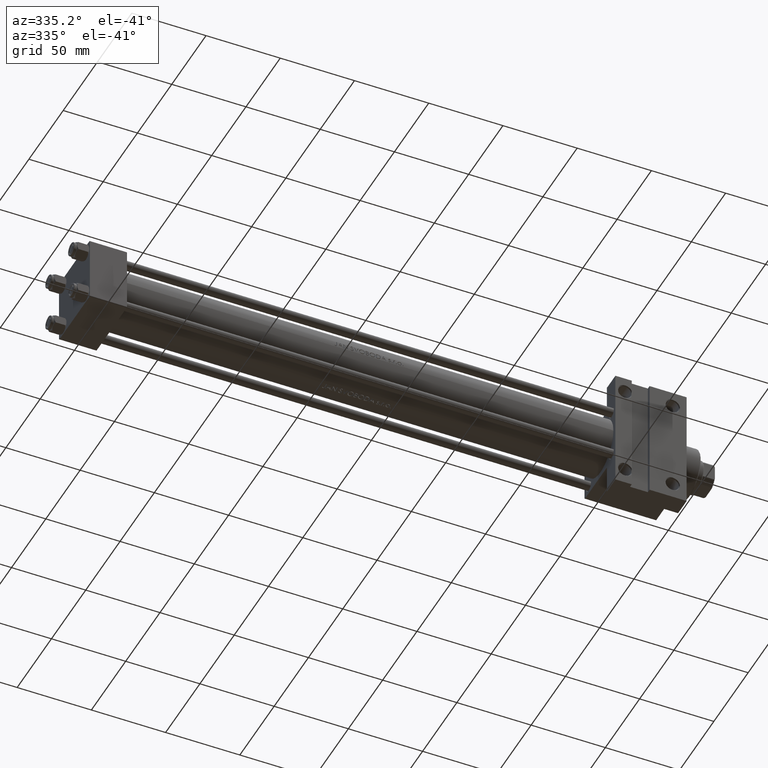
[diagram: clean part render]
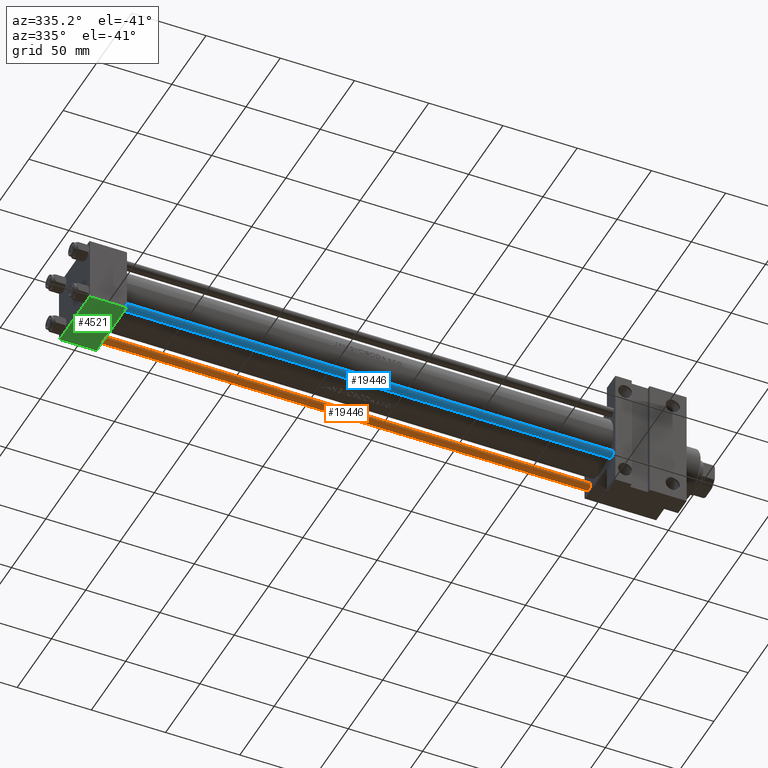
[diagram: same view with three faces highlighted in distinct colors, each labeled with its STEP entity id]
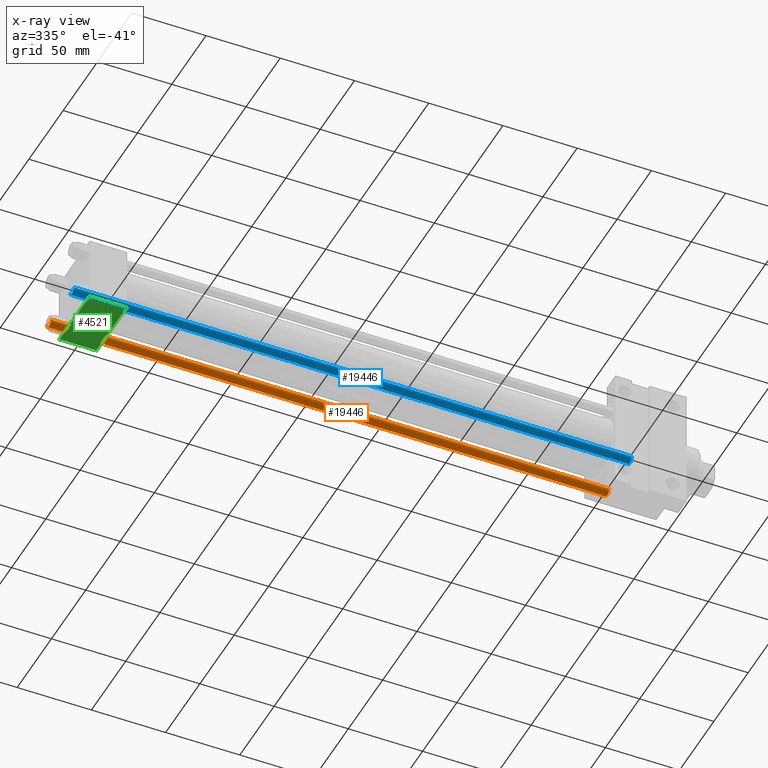
[diagram: x-ray of the same camera — body ghosted, the three highlighted faces saturated]
A machine part, auxiliary view with three faces highlighted in distinct colors.
The next image is the same camera in x-ray (body ghosted, the three faces saturated) — at least one of them is partly hidden behind the body in this view.
Their STEP definitions:

[orange] entity #19446 — the highlighted cylindrical surface (edge-blend (fillet) strip) has radius 3 mm, axis along (-1, -0, 0).
#1725 = EDGE_CURVE ( 'NONE', #26006, #30856, #18553, .T. ) ;
#3904 = VECTOR ( 'NONE', #25449, 1000.000000000000000 ) ;
#5387 = DIRECTION ( 'NONE',  ( 1.000000000000000000, 0.000000000000000000, 0.000000000000000000 ) ) ;
#5630 = CARTESIAN_POINT ( 'NONE',  ( 0.000000000000000000, 0.000000000000000000, 0.5000000000000559552 ) ) ;
#5668 = AXIS2_PLACEMENT_3D ( 'NONE', #41753, #20545, #20774 ) ;
#9049 = CARTESIAN_POINT ( 'NONE',  ( 0.000000000000000000, 0.000000000000000000, 376.5000000000000568 ) ) ;
#9944 = CARTESIAN_POINT ( 'NONE',  ( -3.000000000000000444, 0.000000000000000000, 376.5000000000000568 ) ) ;
#10063 = AXIS2_PLACEMENT_3D ( 'NONE', #9049, #21119, #31263 ) ;
#10309 = CIRCLE ( 'NONE', #15692, 3.000000000000000444 ) ;
#11223 = EDGE_CURVE ( 'NONE', #36120, #34086, #10309, .T. ) ;
#11439 = EDGE_LOOP ( 'NONE', ( #17567, #15328, #47484, #40861 ) ) ;
#11940 = CARTESIAN_POINT ( 'NONE',  ( 3.000000000000000444, 3.673940397442060361E-16, 0.5000000000000559552 ) ) ;
#12327 = FACE_OUTER_BOUND ( 'NONE', #11439, .T. ) ;
#15056 = CARTESIAN_POINT ( 'NONE',  ( 3.000000000000000444, 3.673940397442060361E-16, 376.5000000000000568 ) ) ;
#15328 = ORIENTED_EDGE ( 'NONE', *, *, #1725, .T. ) ;
#15692 = AXIS2_PLACEMENT_3D ( 'NONE', #5630, #38431, #5387 ) ;
#17366 = DIRECTION ( 'NONE',  ( -0.000000000000000000, -0.000000000000000000, -1.000000000000000000 ) ) ;
#17567 = ORIENTED_EDGE ( 'NONE', *, *, #47424, .F. ) ;
#18553 = CIRCLE ( 'NONE', #10063, 3.000000000000000444 ) ;
#19446 = ADVANCED_FACE ( 'NONE', ( #12327 ), #27050, .T. ) ;
#20545 = DIRECTION ( 'NONE',  ( -0.000000000000000000, -0.000000000000000000, -1.000000000000000000 ) ) ;
#20774 = DIRECTION ( 'NONE',  ( -1.000000000000000000, 0.000000000000000000, 0.000000000000000000 ) ) ;
#21119 = DIRECTION ( 'NONE',  ( 0.000000000000000000, 0.000000000000000000, -1.000000000000000000 ) ) ;
#21835 = LINE ( 'NONE', #35181, #3904 ) ;
#25449 = DIRECTION ( 'NONE',  ( -0.000000000000000000, -0.000000000000000000, -1.000000000000000000 ) ) ;
#26006 = VERTEX_POINT ( 'NONE', #15056 ) ;
#27050 = CYLINDRICAL_SURFACE ( 'NONE', #5668, 3.000000000000000444 ) ;
#28456 = LINE ( 'NONE', #35928, #36326 ) ;
#30856 = VERTEX_POINT ( 'NONE', #9944 ) ;
#31263 = DIRECTION ( 'NONE',  ( 1.000000000000000000, 0.000000000000000000, 0.000000000000000000 ) ) ;
#34086 = VERTEX_POINT ( 'NONE', #11940 ) ;
#35181 = CARTESIAN_POINT ( 'NONE',  ( -3.000000000000000444, 0.000000000000000000, 377.0000000000000000 ) ) ;
#35928 = CARTESIAN_POINT ( 'NONE',  ( 3.000000000000000444, 3.673940397442060361E-16, 377.0000000000000000 ) ) ;
#36120 = VERTEX_POINT ( 'NONE', #38778 ) ;
#36326 = VECTOR ( 'NONE', #17366, 1000.000000000000000 ) ;
#37338 = EDGE_CURVE ( 'NONE', #30856, #36120, #21835, .T. ) ;
#38431 = DIRECTION ( 'NONE',  ( -0.000000000000000000, -0.000000000000000000, 1.000000000000000000 ) ) ;
#38778 = CARTESIAN_POINT ( 'NONE',  ( -3.000000000000000444, 0.000000000000000000, 0.5000000000000559552 ) ) ;
#40861 = ORIENTED_EDGE ( 'NONE', *, *, #11223, .T. ) ;
#41753 = CARTESIAN_POINT ( 'NONE',  ( 0.000000000000000000, 0.000000000000000000, 377.0000000000000000 ) ) ;
#47424 = EDGE_CURVE ( 'NONE', #26006, #34086, #28456, .T. ) ;
#47484 = ORIENTED_EDGE ( 'NONE', *, *, #37338, .T. ) ;

[blue] entity #19446 — the highlighted cylindrical surface (edge-blend (fillet) strip) has radius 3 mm, axis along (1, 0, 0).
#1725 = EDGE_CURVE ( 'NONE', #26006, #30856, #18553, .T. ) ;
#3904 = VECTOR ( 'NONE', #25449, 1000.000000000000000 ) ;
#5387 = DIRECTION ( 'NONE',  ( 1.000000000000000000, 0.000000000000000000, 0.000000000000000000 ) ) ;
#5630 = CARTESIAN_POINT ( 'NONE',  ( 0.000000000000000000, 0.000000000000000000, 0.5000000000000559552 ) ) ;
#5668 = AXIS2_PLACEMENT_3D ( 'NONE', #41753, #20545, #20774 ) ;
#9049 = CARTESIAN_POINT ( 'NONE',  ( 0.000000000000000000, 0.000000000000000000, 376.5000000000000568 ) ) ;
#9944 = CARTESIAN_POINT ( 'NONE',  ( -3.000000000000000444, 0.000000000000000000, 376.5000000000000568 ) ) ;
#10063 = AXIS2_PLACEMENT_3D ( 'NONE', #9049, #21119, #31263 ) ;
#10309 = CIRCLE ( 'NONE', #15692, 3.000000000000000444 ) ;
#11223 = EDGE_CURVE ( 'NONE', #36120, #34086, #10309, .T. ) ;
#11439 = EDGE_LOOP ( 'NONE', ( #17567, #15328, #47484, #40861 ) ) ;
#11940 = CARTESIAN_POINT ( 'NONE',  ( 3.000000000000000444, 3.673940397442060361E-16, 0.5000000000000559552 ) ) ;
#12327 = FACE_OUTER_BOUND ( 'NONE', #11439, .T. ) ;
#15056 = CARTESIAN_POINT ( 'NONE',  ( 3.000000000000000444, 3.673940397442060361E-16, 376.5000000000000568 ) ) ;
#15328 = ORIENTED_EDGE ( 'NONE', *, *, #1725, .T. ) ;
#15692 = AXIS2_PLACEMENT_3D ( 'NONE', #5630, #38431, #5387 ) ;
#17366 = DIRECTION ( 'NONE',  ( -0.000000000000000000, -0.000000000000000000, -1.000000000000000000 ) ) ;
#17567 = ORIENTED_EDGE ( 'NONE', *, *, #47424, .F. ) ;
#18553 = CIRCLE ( 'NONE', #10063, 3.000000000000000444 ) ;
#19446 = ADVANCED_FACE ( 'NONE', ( #12327 ), #27050, .T. ) ;
#20545 = DIRECTION ( 'NONE',  ( -0.000000000000000000, -0.000000000000000000, -1.000000000000000000 ) ) ;
#20774 = DIRECTION ( 'NONE',  ( -1.000000000000000000, 0.000000000000000000, 0.000000000000000000 ) ) ;
#21119 = DIRECTION ( 'NONE',  ( 0.000000000000000000, 0.000000000000000000, -1.000000000000000000 ) ) ;
#21835 = LINE ( 'NONE', #35181, #3904 ) ;
#25449 = DIRECTION ( 'NONE',  ( -0.000000000000000000, -0.000000000000000000, -1.000000000000000000 ) ) ;
#26006 = VERTEX_POINT ( 'NONE', #15056 ) ;
#27050 = CYLINDRICAL_SURFACE ( 'NONE', #5668, 3.000000000000000444 ) ;
#28456 = LINE ( 'NONE', #35928, #36326 ) ;
#30856 = VERTEX_POINT ( 'NONE', #9944 ) ;
#31263 = DIRECTION ( 'NONE',  ( 1.000000000000000000, 0.000000000000000000, 0.000000000000000000 ) ) ;
#34086 = VERTEX_POINT ( 'NONE', #11940 ) ;
#35181 = CARTESIAN_POINT ( 'NONE',  ( -3.000000000000000444, 0.000000000000000000, 377.0000000000000000 ) ) ;
#35928 = CARTESIAN_POINT ( 'NONE',  ( 3.000000000000000444, 3.673940397442060361E-16, 377.0000000000000000 ) ) ;
#36120 = VERTEX_POINT ( 'NONE', #38778 ) ;
#36326 = VECTOR ( 'NONE', #17366, 1000.000000000000000 ) ;
#37338 = EDGE_CURVE ( 'NONE', #30856, #36120, #21835, .T. ) ;
#38431 = DIRECTION ( 'NONE',  ( -0.000000000000000000, -0.000000000000000000, 1.000000000000000000 ) ) ;
#38778 = CARTESIAN_POINT ( 'NONE',  ( -3.000000000000000444, 0.000000000000000000, 0.5000000000000559552 ) ) ;
#40861 = ORIENTED_EDGE ( 'NONE', *, *, #11223, .T. ) ;
#41753 = CARTESIAN_POINT ( 'NONE',  ( 0.000000000000000000, 0.000000000000000000, 377.0000000000000000 ) ) ;
#47424 = EDGE_CURVE ( 'NONE', #26006, #34086, #28456, .T. ) ;
#47484 = ORIENTED_EDGE ( 'NONE', *, *, #37338, .T. ) ;

[green] entity #4521 — the highlighted planar face has unit normal (0, 0, -1).
#318 = VERTEX_POINT ( 'NONE', #20929 ) ;
#2598 = DIRECTION ( 'NONE',  ( 0.000000000000000000, 0.000000000000000000, -1.000000000000000000 ) ) ;
#3200 = EDGE_CURVE ( 'NONE', #34384, #318, #7975, .T. ) ;
#3337 = CARTESIAN_POINT ( 'NONE',  ( 25.00000000000000000, 22.50000000000000000, -21.99999999999996803 ) ) ;
#4521 = ADVANCED_FACE ( 'NONE', ( #29364 ), #40450, .T. ) ;
#5984 = CARTESIAN_POINT ( 'NONE',  ( 25.00000000000000000, 22.50000000000000000, 22.50000000000000355 ) ) ;
#7732 = DIRECTION ( 'NONE',  ( 1.000000000000000000, 0.000000000000000000, 0.000000000000000000 ) ) ;
#7975 = LINE ( 'NONE', #26098, #42473 ) ;
#8946 = ORIENTED_EDGE ( 'NONE', *, *, #3200, .T. ) ;
#10312 = DIRECTION ( 'NONE',  ( -0.000000000000000000, 1.000000000000000000, 0.000000000000000000 ) ) ;
#11195 = EDGE_LOOP ( 'NONE', ( #38336, #12471, #27478, #8946 ) ) ;
#12471 = ORIENTED_EDGE ( 'NONE', *, *, #45634, .T. ) ;
#13623 = VECTOR ( 'NONE', #2598, 1000.000000000000000 ) ;
#13927 = CARTESIAN_POINT ( 'NONE',  ( 25.00000000000000000, 22.50000000000000000, 22.50000000000000355 ) ) ;
#20929 = CARTESIAN_POINT ( 'NONE',  ( 25.00000000000000000, 22.50000000000000000, 21.99999999999999645 ) ) ;
#22098 = VERTEX_POINT ( 'NONE', #3337 ) ;
#22153 = CARTESIAN_POINT ( 'NONE',  ( 0.000000000000000000, 22.50000000000000000, 22.50000000000000355 ) ) ;
#22692 = DIRECTION ( 'NONE',  ( -1.000000000000000000, 0.000000000000000000, 0.000000000000000000 ) ) ;
#25780 = LINE ( 'NONE', #22153, #29400 ) ;
#26098 = CARTESIAN_POINT ( 'NONE',  ( 25.00000000000000000, 22.50000000000000000, 21.99999999999999645 ) ) ;
#27456 = EDGE_CURVE ( 'NONE', #318, #22098, #35660, .T. ) ;
#27478 = ORIENTED_EDGE ( 'NONE', *, *, #40268, .F. ) ;
#29364 = FACE_OUTER_BOUND ( 'NONE', #11195, .T. ) ;
#29400 = VECTOR ( 'NONE', #33485, 1000.000000000000000 ) ;
#29687 = VERTEX_POINT ( 'NONE', #34257 ) ;
#30554 = DIRECTION ( 'NONE',  ( 0.000000000000000000, -0.000000000000000000, 1.000000000000000000 ) ) ;
#32411 = VECTOR ( 'NONE', #22692, 1000.000000000000000 ) ;
#32824 = CARTESIAN_POINT ( 'NONE',  ( 25.00000000000000000, 22.50000000000000000, -21.99999999999998224 ) ) ;
#33485 = DIRECTION ( 'NONE',  ( 0.000000000000000000, 0.000000000000000000, -1.000000000000000000 ) ) ;
#34257 = CARTESIAN_POINT ( 'NONE',  ( 0.000000000000000000, 22.50000000000000000, -21.99999999999996803 ) ) ;
#34384 = VERTEX_POINT ( 'NONE', #45100 ) ;
#35660 = LINE ( 'NONE', #5984, #13623 ) ;
#38336 = ORIENTED_EDGE ( 'NONE', *, *, #27456, .T. ) ;
#40268 = EDGE_CURVE ( 'NONE', #34384, #29687, #25780, .T. ) ;
#40450 = PLANE ( 'NONE',  #42549 ) ;
#40999 = LINE ( 'NONE', #32824, #32411 ) ;
#42473 = VECTOR ( 'NONE', #7732, 1000.000000000000000 ) ;
#42549 = AXIS2_PLACEMENT_3D ( 'NONE', #13927, #10312, #30554 ) ;
#45100 = CARTESIAN_POINT ( 'NONE',  ( 0.000000000000000000, 22.50000000000000000, 21.99999999999999645 ) ) ;
#45634 = EDGE_CURVE ( 'NONE', #22098, #29687, #40999, .T. ) ;